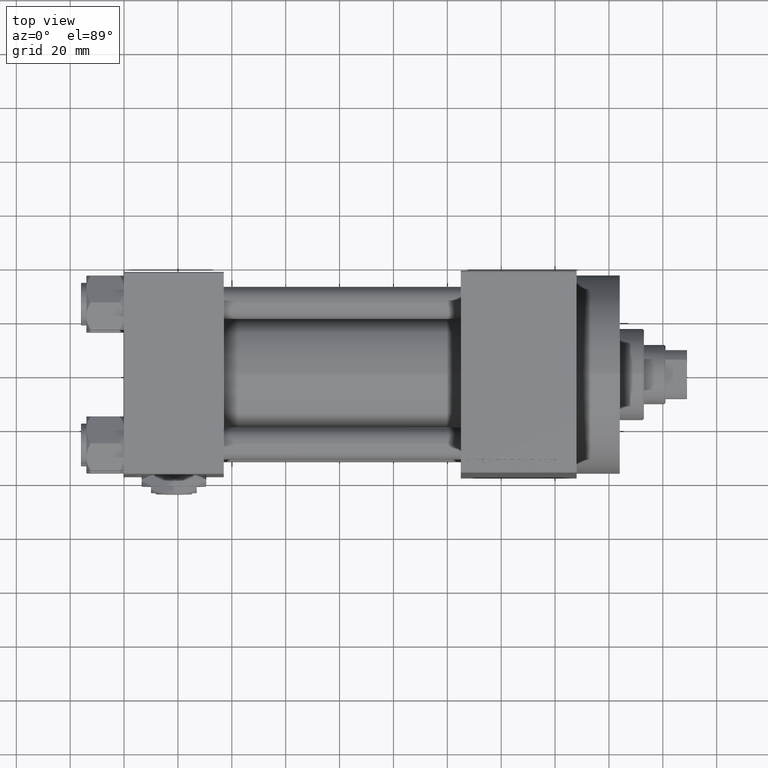
[diagram: clean part render]
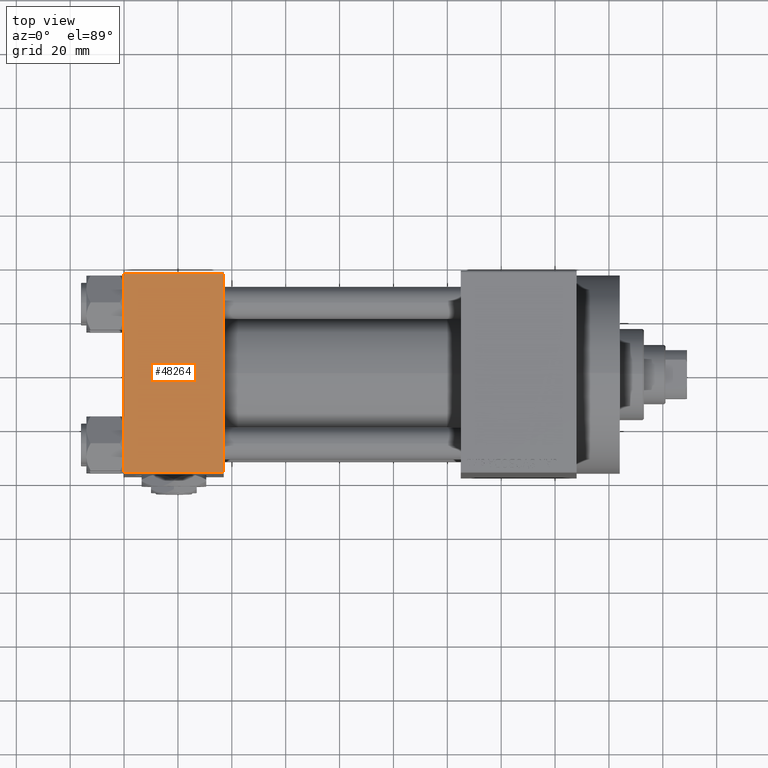
[diagram: same view with one face highlighted and labeled with its STEP entity id]
A machine part, top view. The second image highlights one B-rep face of the part: STEP entity #48264.
In plain terms, the highlighted planar face has unit normal (0, 0, -1).
Its self-contained STEP definition (entity closure, byte-faithful):
#1770 = CARTESIAN_POINT ( 'NONE',  ( 37.00000000000000000, 37.49999999999999289, 37.50000000000000000 ) ) ;
#1782 = VERTEX_POINT ( 'NONE', #46650 ) ;
#2853 = VERTEX_POINT ( 'NONE', #10760 ) ;
#2941 = CARTESIAN_POINT ( 'NONE',  ( 0.000000000000000000, 36.99999999999999289, 37.50000000000000000 ) ) ;
#2992 = DIRECTION ( 'NONE',  ( -1.000000000000000000, 0.000000000000000000, 0.000000000000000000 ) ) ;
#4076 = ORIENTED_EDGE ( 'NONE', *, *, #39474, .F. ) ;
#5879 = VECTOR ( 'NONE', #38728, 1000.000000000000000 ) ;
#6850 = EDGE_LOOP ( 'NONE', ( #13119, #11535, #4076, #30350 ) ) ;
#9802 = CARTESIAN_POINT ( 'NONE',  ( 0.000000000000000000, -37.00000000000000711, 37.49999999999999289 ) ) ;
#10760 = CARTESIAN_POINT ( 'NONE',  ( 37.00000000000000000, -37.00000000000000711, 37.49999999999999289 ) ) ;
#11535 = ORIENTED_EDGE ( 'NONE', *, *, #30819, .T. ) ;
#12606 = PLANE ( 'NONE',  #15872 ) ;
#13119 = ORIENTED_EDGE ( 'NONE', *, *, #36710, .T. ) ;
#15872 = AXIS2_PLACEMENT_3D ( 'NONE', #1770, #16527, #16777 ) ;
#16527 = DIRECTION ( 'NONE',  ( 0.000000000000000000, 9.251858538542971581E-17, -1.000000000000000000 ) ) ;
#16777 = DIRECTION ( 'NONE',  ( 0.000000000000000000, 1.000000000000000000, 9.251858538542971581E-17 ) ) ;
#19527 = CARTESIAN_POINT ( 'NONE',  ( 37.00000000000000000, -37.00000000000000711, 37.49999999999999289 ) ) ;
#22441 = DIRECTION ( 'NONE',  ( 0.000000000000000000, -1.000000000000000000, -9.251858538542971581E-17 ) ) ;
#22699 = VECTOR ( 'NONE', #2992, 1000.000000000000000 ) ;
#23340 = DIRECTION ( 'NONE',  ( 0.000000000000000000, -1.000000000000000000, -9.251858538542971581E-17 ) ) ;
#23580 = CARTESIAN_POINT ( 'NONE',  ( 37.00000000000000000, 37.49999999999999289, 37.50000000000000000 ) ) ;
#24229 = VECTOR ( 'NONE', #23340, 1000.000000000000000 ) ;
#24869 = LINE ( 'NONE', #19527, #5879 ) ;
#25690 = VECTOR ( 'NONE', #22441, 1000.000000000000000 ) ;
#27773 = LINE ( 'NONE', #23580, #24229 ) ;
#30350 = ORIENTED_EDGE ( 'NONE', *, *, #42046, .T. ) ;
#30819 = EDGE_CURVE ( 'NONE', #42647, #2853, #24869, .T. ) ;
#32995 = LINE ( 'NONE', #36698, #22699 ) ;
#36698 = CARTESIAN_POINT ( 'NONE',  ( 0.000000000000000000, 36.99999999999999289, 37.50000000000000000 ) ) ;
#36710 = EDGE_CURVE ( 'NONE', #42447, #42647, #48517, .T. ) ;
#38728 = DIRECTION ( 'NONE',  ( 1.000000000000000000, 0.000000000000000000, 0.000000000000000000 ) ) ;
#39474 = EDGE_CURVE ( 'NONE', #1782, #2853, #27773, .T. ) ;
#41617 = CARTESIAN_POINT ( 'NONE',  ( 0.000000000000000000, 37.49999999999999289, 37.50000000000000000 ) ) ;
#42046 = EDGE_CURVE ( 'NONE', #1782, #42447, #32995, .T. ) ;
#42447 = VERTEX_POINT ( 'NONE', #2941 ) ;
#42647 = VERTEX_POINT ( 'NONE', #9802 ) ;
#45830 = FACE_OUTER_BOUND ( 'NONE', #6850, .T. ) ;
#46650 = CARTESIAN_POINT ( 'NONE',  ( 37.00000000000000000, 36.99999999999999289, 37.50000000000000000 ) ) ;
#48264 = ADVANCED_FACE ( 'NONE', ( #45830 ), #12606, .F. ) ;
#48517 = LINE ( 'NONE', #41617, #25690 ) ;